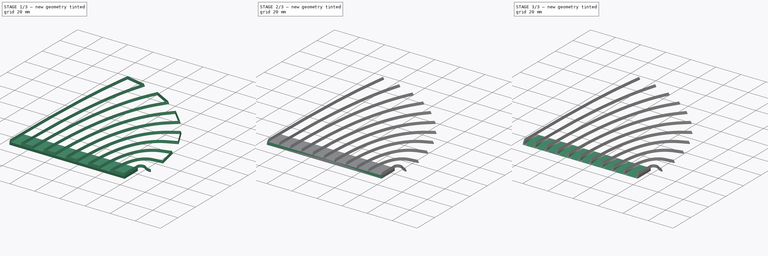
[diagram: build sequence overview — one tinted view per stage of 3, left to right]
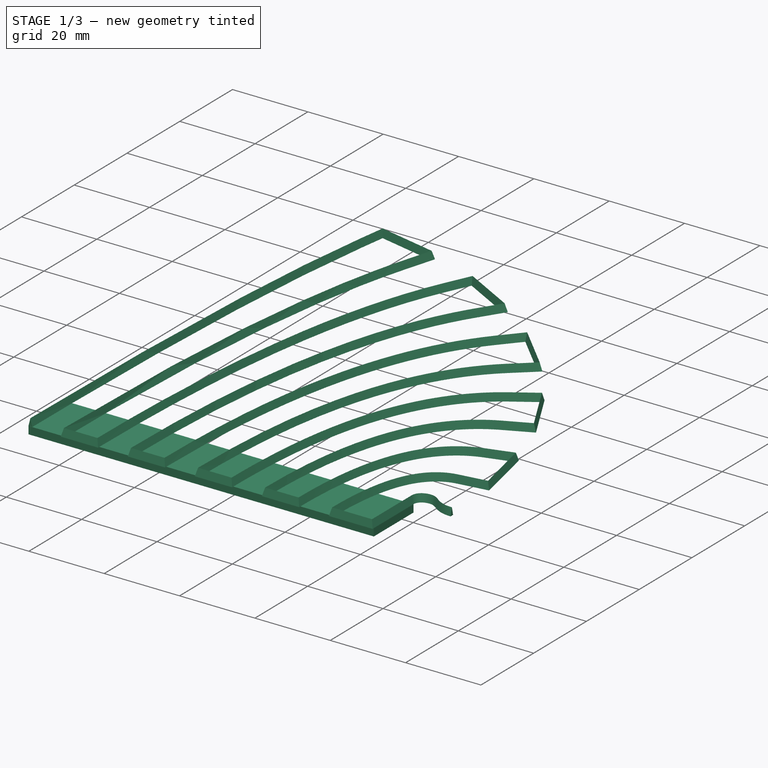
[diagram: stage 1 of 3 — iso view after this stage's code; geometry added in this stage tinted green]
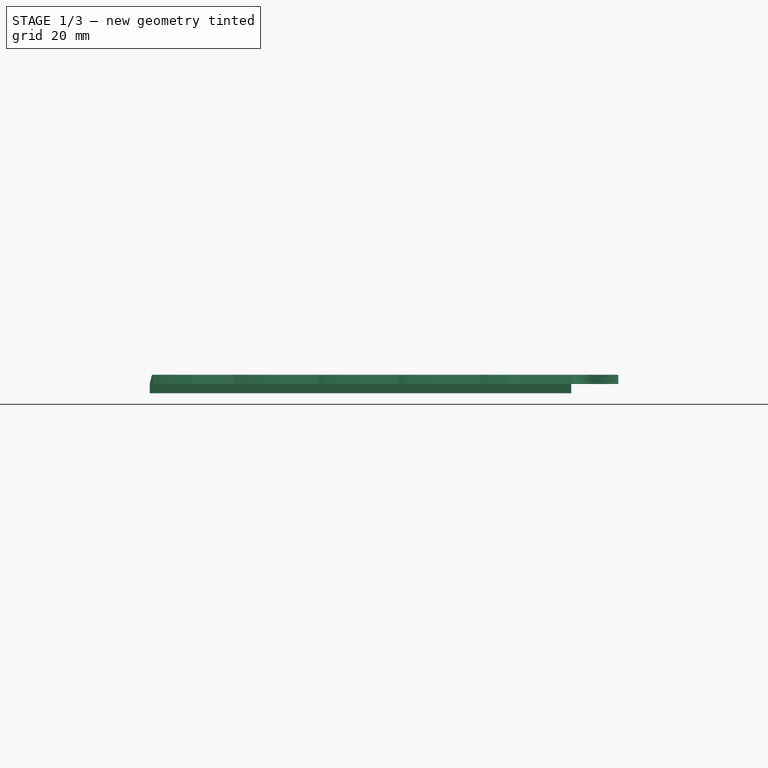
[diagram: stage 1 of 3 — front view after this stage's code; geometry added in this stage tinted green]
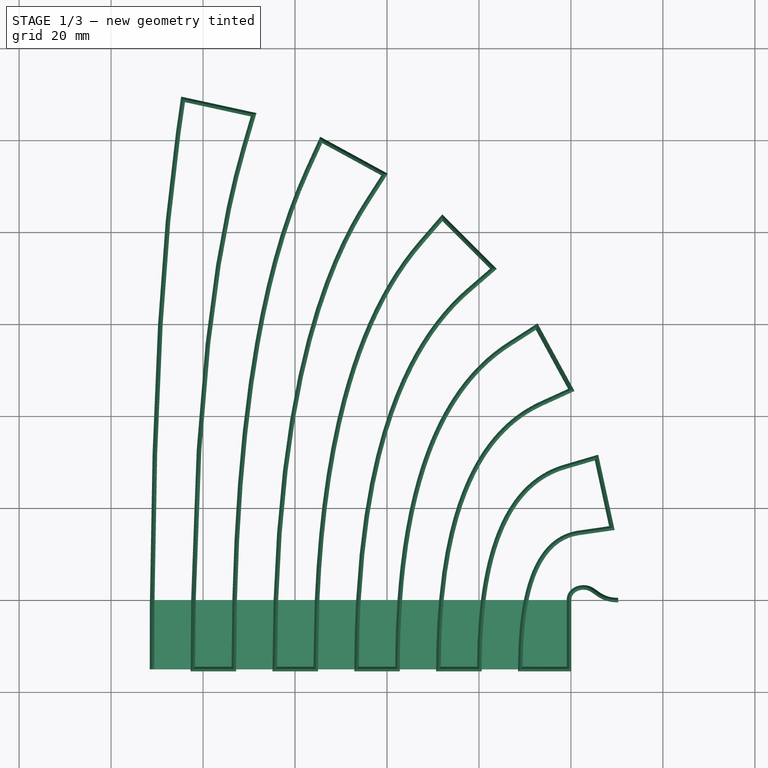
[diagram: stage 1 of 3 — top view after this stage's code; geometry added in this stage tinted green]
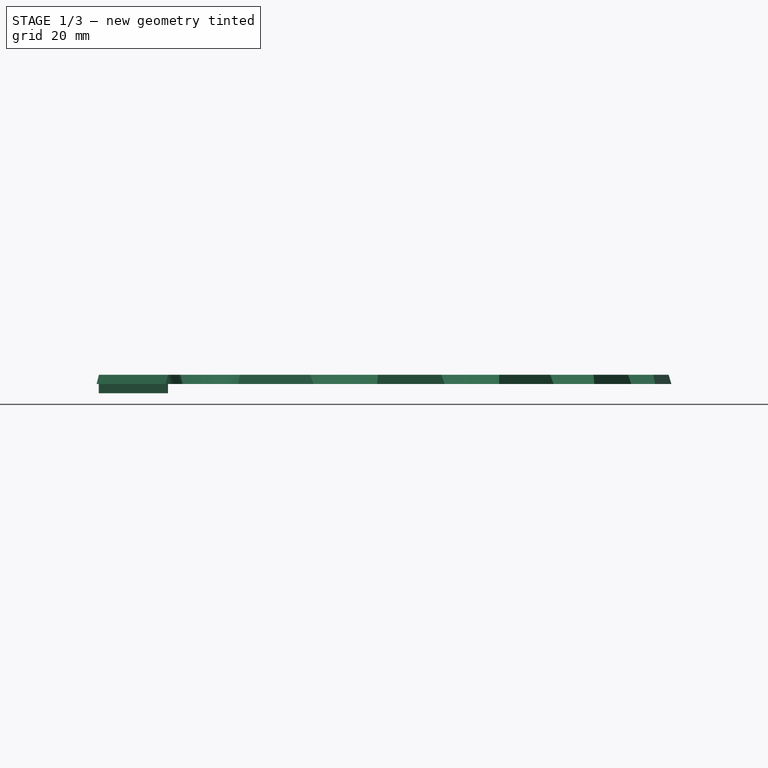
[diagram: stage 1 of 3 — right view after this stage's code; geometry added in this stage tinted green]
FCSTD DOCUMENT  (FreeCAD 0.20R29603 (Git))
Label: Heat Exchanger inlet dispersion grid rounded edges inject mold version
License: All rights reserved
LicenseURL: http://en.wikipedia.org/wiki/All_rights_reserved
objects: Sketcher::SketchObject×7, PartDesign::Pocket×2, PartDesign::AdditivePipe×1, PartDesign::Pad×1, PartDesign::SubtractivePipe×1, PartDesign::Body×1
note: 18 computed .brp shape members not serialized (recipe doc carries the construction recipe); baked Part::Feature solids carry a one-line shape summary decoded from their .brp

FEATURE [Sketcher::SketchObject] Sketch
  FullyConstrained = false
  MapMode = 5
  Support = -> [XY_Plane]
  sketch-geometry (132):
    g0: ArcOfCircle CenterX=-3.6e-15 CenterY=0 CenterZ=0 NormalX=0 NormalY=0 NormalZ=1 AngleXU=0 Radius=102.831 StartAngle=0 EndAngle=1.5708
    g1: LineSegment StartX=102.831 StartY=0 StartZ=0 EndX=102.831 EndY=-15 EndZ=0
    g2: LineSegment StartX=6.3e-15 StartY=102.831 StartZ=0 EndX=14.6343 EndY=101.784 EndZ=0
    g3: LineSegment StartX=14.6343 StartY=101.784 StartZ=0 EndX=28.9708 EndY=98.6653 EndZ=0
    g4: LineSegment StartX=28.9708 StartY=98.6653 StartZ=0 EndX=42.7174 EndY=93.5381 EndZ=0
    g5: LineSegment StartX=42.7174 StartY=93.5381 StartZ=0 EndX=55.5945 EndY=86.5067 EndZ=0
    g6: LineSegment StartX=55.5945 StartY=86.5067 StartZ=0 EndX=67.3398 EndY=77.7142 EndZ=0
    g7: LineSegment StartX=67.3398 StartY=77.7142 StartZ=0 EndX=77.7142 EndY=67.3398 EndZ=0
    g8: LineSegment StartX=77.7142 StartY=67.3398 StartZ=0 EndX=86.5067 EndY=55.5945 EndZ=0
    g9: LineSegment StartX=86.5067 StartY=55.5945 StartZ=0 EndX=93.5381 EndY=42.7174 EndZ=0
    g10: LineSegment StartX=93.5381 StartY=42.7174 StartZ=0 EndX=98.6653 EndY=28.9708 EndZ=0
    g11: LineSegment StartX=98.6653 StartY=28.9708 StartZ=0 EndX=101.784 EndY=14.6343 EndZ=0
    g12: LineSegment StartX=101.784 StartY=14.6343 StartZ=0 EndX=102.831 EndY=0 EndZ=0
    g13: LineSegment StartX=-3.6e-15 StartY=0 StartZ=0 EndX=14.6343 EndY=101.784 EndZ=0
    g14: LineSegment StartX=28.9708 StartY=98.6653 StartZ=0 EndX=-3.6e-15 EndY=0 EndZ=0
    g15: LineSegment StartX=42.7174 StartY=93.5381 StartZ=0 EndX=0 EndY=0 EndZ=0
    g16: LineSegment StartX=55.5945 StartY=86.5067 StartZ=0 EndX=0 EndY=0 EndZ=0
    g17: LineSegment StartX=67.3398 StartY=77.7142 StartZ=0 EndX=0 EndY=0 EndZ=0
    g18: LineSegment StartX=77.7142 StartY=67.3398 StartZ=0 EndX=0 EndY=0 EndZ=0
    g19: LineSegment StartX=86.5067 StartY=55.5945 StartZ=0 EndX=0 EndY=0 EndZ=0
    g20: LineSegment StartX=93.5381 StartY=42.7174 StartZ=0 EndX=0 EndY=0 EndZ=0
    g21: LineSegment StartX=98.6653 StartY=28.9708 StartZ=0 EndX=0 EndY=-3.6e-15 EndZ=0
    g22: LineSegment StartX=101.784 StartY=14.6343 StartZ=0 EndX=0 EndY=1.8e-15 EndZ=0
    g23: LineSegment StartX=8.89879 StartY=-15 StartZ=0 EndX=0 EndY=-15 EndZ=0
    g24: LineSegment StartX=17.7976 StartY=-15 StartZ=0 EndX=8.89879 EndY=-15 EndZ=0
    g25: LineSegment StartX=26.6964 StartY=-15 StartZ=0 EndX=17.7976 EndY=-15 EndZ=0
    g26: LineSegment StartX=35.5952 StartY=-15 StartZ=0 EndX=26.6964 EndY=-15 EndZ=0
    g27: LineSegment StartX=53.3927 StartY=-15 StartZ=0 EndX=44.4939 EndY=-15 EndZ=0
    g28: LineSegment StartX=44.4939 StartY=-15 StartZ=0 EndX=35.5952 EndY=-15 EndZ=0
    g29: LineSegment StartX=62.2915 StartY=-15 StartZ=0 EndX=53.3927 EndY=-15 EndZ=0
    g30: LineSegment StartX=71.1903 StartY=-15 StartZ=0 EndX=62.2915 EndY=-15 EndZ=0
    g31: LineSegment StartX=80.0891 StartY=-15 StartZ=0 EndX=71.1903 EndY=-15 EndZ=0
    g32: LineSegment StartX=88.9879 StartY=-15 StartZ=0 EndX=80.0891 EndY=-15 EndZ=0
    g33: Circle CenterX=8.89879 CenterY=-15 CenterZ=0 NormalX=0 NormalY=0 NormalZ=1 AngleXU=0 Radius=1
    g34: Circle CenterX=8.89879 CenterY=61.8924 CenterZ=0 NormalX=0 NormalY=0 NormalZ=1 AngleXU=0 Radius=1
    g35: Circle CenterX=14.6343 CenterY=101.784 CenterZ=0 NormalX=0 NormalY=0 NormalZ=1 AngleXU=0 Radius=1
    g36: BSplineCurve PolesCount=3 KnotsCount=2 Degree=2 IsPeriodic=0
    g37: GeomPoint X=8.89879 Y=-15 Z=0
    g38: GeomPoint X=14.6343 Y=101.784 Z=0
    g39: Circle CenterX=17.7976 CenterY=-15 CenterZ=0 NormalX=0 NormalY=0 NormalZ=1 AngleXU=0 Radius=1
    g40: Circle CenterX=17.7976 CenterY=60.613 CenterZ=0 NormalX=0 NormalY=0 NormalZ=1 AngleXU=0 Radius=1
    g41: Circle CenterX=28.9708 CenterY=98.6653 CenterZ=0 NormalX=0 NormalY=0 NormalZ=1 AngleXU=0 Radius=1
    g42: BSplineCurve PolesCount=3 KnotsCount=2 Degree=2 IsPeriodic=0
    g43: GeomPoint X=17.7976 Y=-15 Z=0
    g44: GeomPoint X=28.9708 Y=98.6653 Z=0
    g45: Circle CenterX=26.6964 CenterY=-15 CenterZ=0 NormalX=0 NormalY=0 NormalZ=1 AngleXU=0 Radius=1
    g46: Circle CenterX=26.6964 CenterY=58.4569 CenterZ=0 NormalX=0 NormalY=0 NormalZ=1 AngleXU=0 Radius=1
    g47: Circle CenterX=42.7174 CenterY=93.5381 CenterZ=0 NormalX=0 NormalY=0 NormalZ=1 AngleXU=0 Radius=1
    g48: BSplineCurve PolesCount=3 KnotsCount=2 Degree=2 IsPeriodic=0
    g49: GeomPoint X=26.6964 Y=-15 Z=0
    g50: GeomPoint X=42.7174 Y=93.5381 Z=0
    g51: Circle CenterX=35.5952 CenterY=-15 CenterZ=0 NormalX=0 NormalY=0 NormalZ=1 AngleXU=0 Radius=1
    g52: Circle CenterX=35.5952 CenterY=55.3871 CenterZ=0 NormalX=0 NormalY=0 NormalZ=1 AngleXU=0 Radius=1
    g53: Circle CenterX=55.5945 CenterY=86.5067 CenterZ=0 NormalX=0 NormalY=0 NormalZ=1 AngleXU=0 Radius=1
    g54: BSplineCurve PolesCount=3 KnotsCount=2 Degree=2 IsPeriodic=0
    g55: GeomPoint X=35.5952 Y=-15 Z=0
    g56: GeomPoint X=55.5945 Y=86.5067 Z=0
    g57: Circle CenterX=44.4939 CenterY=-15 CenterZ=0 NormalX=0 NormalY=0 NormalZ=1 AngleXU=0 Radius=1
    g58: Circle CenterX=44.4939 CenterY=51.3487 CenterZ=0 NormalX=0 NormalY=0 NormalZ=1 AngleXU=0 Radius=1
    g59: Circle CenterX=67.3398 CenterY=77.7142 CenterZ=0 NormalX=0 NormalY=0 NormalZ=1 AngleXU=0 Radius=1
    g60: BSplineCurve PolesCount=3 KnotsCount=2 Degree=2 IsPeriodic=0
    g61: GeomPoint X=44.4939 Y=-15 Z=0
    g62: GeomPoint X=67.3398 Y=77.7142 Z=0
    g63: Circle CenterX=53.3927 CenterY=-15 CenterZ=0 NormalX=0 NormalY=0 NormalZ=1 AngleXU=0 Radius=1
    g64: Circle CenterX=53.3927 CenterY=46.2651 CenterZ=0 NormalX=0 NormalY=0 NormalZ=1 AngleXU=0 Radius=1
    g65: Circle CenterX=77.7142 CenterY=67.3398 CenterZ=0 NormalX=0 NormalY=0 NormalZ=1 AngleXU=0 Radius=1
    g66: BSplineCurve PolesCount=3 KnotsCount=2 Degree=2 IsPeriodic=0
    g67: GeomPoint X=53.3927 Y=-15 Z=0
    g68: GeomPoint X=77.7142 Y=67.3398 Z=0
    g69: Circle CenterX=62.2915 CenterY=-15 CenterZ=0 NormalX=0 NormalY=0 NormalZ=1 AngleXU=0 Radius=1
    g70: Circle CenterX=62.2915 CenterY=40.0323 CenterZ=0 NormalX=0 NormalY=0 NormalZ=1 AngleXU=0 Radius=1
    g71: Circle CenterX=86.5067 CenterY=55.5945 CenterZ=0 NormalX=0 NormalY=0 NormalZ=1 AngleXU=0 Radius=1
    g72: BSplineCurve PolesCount=3 KnotsCount=2 Degree=2 IsPeriodic=0
    g73: GeomPoint X=62.2915 Y=-15 Z=0
    g74: GeomPoint X=86.5067 Y=55.5945 Z=0
    g75: Circle CenterX=71.1903 CenterY=-15 CenterZ=0 NormalX=0 NormalY=0 NormalZ=1 AngleXU=0 Radius=1
    g76: Circle CenterX=71.1903 CenterY=32.5115 CenterZ=0 NormalX=0 NormalY=0 NormalZ=1 AngleXU=0 Radius=1
    g77: Circle CenterX=93.5381 CenterY=42.7174 CenterZ=0 NormalX=0 NormalY=0 NormalZ=1 AngleXU=0 Radius=1
    g78: BSplineCurve PolesCount=3 KnotsCount=2 Degree=2 IsPeriodic=0
    g79: GeomPoint X=71.1903 Y=-15 Z=0
    g80: GeomPoint X=93.5381 Y=42.7174 Z=0
    g81: Circle CenterX=80.0891 CenterY=-15 CenterZ=0 NormalX=0 NormalY=0 NormalZ=1 AngleXU=0 Radius=1
    g82: Circle CenterX=80.0891 CenterY=23.5163 CenterZ=0 NormalX=0 NormalY=0 NormalZ=1 AngleXU=0 Radius=1
    g83: Circle CenterX=98.6653 CenterY=28.9708 CenterZ=0 NormalX=0 NormalY=0 NormalZ=1 AngleXU=0 Radius=1
    g84: BSplineCurve PolesCount=3 KnotsCount=2 Degree=2 IsPeriodic=0
    g85: GeomPoint X=80.0891 Y=-15 Z=0
    g86: GeomPoint X=98.6653 Y=28.9708 Z=0
    g87: Circle CenterX=88.9879 CenterY=-15 CenterZ=0 NormalX=0 NormalY=0 NormalZ=1 AngleXU=0 Radius=1
    g88: Circle CenterX=88.9879 CenterY=12.7945 CenterZ=0 NormalX=0 NormalY=0 NormalZ=1 AngleXU=0 Radius=1
    g89: Circle CenterX=101.784 CenterY=14.6343 CenterZ=0 NormalX=0 NormalY=0 NormalZ=1 AngleXU=0 Radius=1
    g90: BSplineCurve PolesCount=3 KnotsCount=2 Degree=2 IsPeriodic=0
    g91: GeomPoint X=88.9879 Y=-15 Z=0
    g92: GeomPoint X=101.784 Y=14.6343 Z=0
    g93: LineSegment StartX=8.89879 StartY=61.8924 StartZ=0 EndX=8.89879 EndY=-15 EndZ=0
    g94: LineSegment StartX=17.7976 StartY=60.613 StartZ=0 EndX=17.7976 EndY=-15 EndZ=0
    g95: LineSegment StartX=26.6964 StartY=58.4569 StartZ=0 EndX=26.6964 EndY=-15 EndZ=0
    g96: LineSegment StartX=35.5952 StartY=55.3871 StartZ=0 EndX=35.5952 EndY=-15 EndZ=0
    g97: LineSegment StartX=44.4939 StartY=51.3487 StartZ=0 EndX=44.4939 EndY=-15 EndZ=0
    g98: LineSegment StartX=53.3927 StartY=46.2651 StartZ=0 EndX=53.3927 EndY=-15 EndZ=0
    g99: LineSegment StartX=62.2915 StartY=40.0323 StartZ=0 EndX=62.2915 EndY=-15 EndZ=0
    g100: LineSegment StartX=71.1903 StartY=32.5115 StartZ=0 EndX=71.1903 EndY=-15 EndZ=0
    g101: LineSegment StartX=80.0891 StartY=23.5163 StartZ=0 EndX=80.0891 EndY=-15 EndZ=0
    g102: LineSegment StartX=88.9879 StartY=12.7945 StartZ=0 EndX=88.9879 EndY=-15 EndZ=0
    g103: LineSegment StartX=14.6343 StartY=101.784 StartZ=0 EndX=15.6573 EndY=108.899 EndZ=0
    g104: LineSegment StartX=28.9708 StartY=98.6653 StartZ=0 EndX=30.9958 EndY=105.562 EndZ=0
    g105: LineSegment StartX=42.7174 StartY=93.5381 StartZ=0 EndX=45.7034 EndY=100.076 EndZ=0
    g106: LineSegment StartX=55.5945 StartY=86.5067 StartZ=0 EndX=59.4806 EndY=92.5536 EndZ=0
    g107: LineSegment StartX=67.3398 StartY=77.7142 StartZ=0 EndX=72.0469 EndY=83.1465 EndZ=0
    g108: LineSegment StartX=77.7142 StartY=67.3398 StartZ=0 EndX=83.1465 EndY=72.0469 EndZ=0
    g109: LineSegment StartX=86.5067 StartY=55.5945 StartZ=0 EndX=92.5536 EndY=59.4806 EndZ=0
    g110: LineSegment StartX=93.5381 StartY=42.7174 StartZ=0 EndX=100.076 EndY=45.7034 EndZ=0
    g111: LineSegment StartX=98.6653 StartY=28.9708 StartZ=0 EndX=105.562 EndY=30.9958 EndZ=0
    g112: LineSegment StartX=101.784 StartY=14.6343 StartZ=0 EndX=108.899 EndY=15.6573 EndZ=0
    g113: LineSegment StartX=102.831 StartY=-15 StartZ=0 EndX=99.5821 EndY=-15 EndZ=0
    g114: LineSegment StartX=99.5821 StartY=-15 StartZ=0 EndX=88.9879 EndY=-15 EndZ=0
    g115: LineSegment StartX=99.5821 StartY=-15 StartZ=0 EndX=99.5821 EndY=0 EndZ=0
    g116: LineSegment StartX=108.899 StartY=15.6573 StartZ=0 EndX=110.277 EndY=0 EndZ=0
    g117-g121: Circle x5 (B-spline internal-alignment scaffolding for g122; pole/knot coordinates omitted)
    g122: BSplineCurve PolesCount=5 KnotsCount=3 Degree=3 IsPeriodic=0
    g123: GeomPoint X=99.5821 Y=0 Z=0
    g124: GeomPoint X=103.822 Y=2.58541 Z=0
    g125: GeomPoint X=110.277 Y=0 Z=0
    g126: LineSegment StartX=99.5821 StartY=0 StartZ=0 EndX=90.6833 EndY=0 EndZ=0
    g127: LineSegment StartX=15.6573 StartY=108.899 StartZ=0 EndX=30.9958 EndY=105.562 EndZ=0
    g128: LineSegment StartX=45.7034 StartY=100.076 StartZ=0 EndX=59.4806 EndY=92.5536 EndZ=0
    g129: LineSegment StartX=72.0469 StartY=83.1465 StartZ=0 EndX=83.1465 EndY=72.0469 EndZ=0
    g130: LineSegment StartX=92.5536 StartY=59.4806 StartZ=0 EndX=100.076 EndY=45.7034 EndZ=0
    g131: LineSegment StartX=105.562 StartY=30.9958 StartZ=0 EndX=108.899 EndY=15.6573 EndZ=0
  constraints (293):
    c: Coincident(g0,g-1)
    c: PointOnObject(g0,g-1)
    c: PointOnObject(g0,g-2)
    c: Coincident(g1,g0)
    c: Vertical(g1)
    c: PointOnObject(g23,g-2)
    c: Coincident(g0,g2)
    c: Coincident(g2,g3)
    c: PointOnObject(g3,g0)
    c: Coincident(g3,g4)
    c: PointOnObject(g4,g0)
    c: Coincident(g4,g5)
    c: PointOnObject(g5,g0)
    c: Coincident(g5,g6)
    c: PointOnObject(g6,g0)
    c: Coincident(g6,g7)
    c: PointOnObject(g7,g0)
    c: Coincident(g7,g8)
    c: PointOnObject(g8,g0)
    c: Coincident(g8,g9)
    c: PointOnObject(g9,g0)
    c: Coincident(g9,g10)
    c: PointOnObject(g10,g0)
    c: Coincident(g10,g11)
    c: PointOnObject(g11,g0)
    c: Coincident(g11,g12)
    c: Coincident(g12,g0)
    c: PointOnObject(g2,g0)
    c: Equal(g2,g3)
    c: Equal(g3,g4)
    c: Equal(g4,g5)
    c: Equal(g5,g6)
    c: Equal(g6,g7)
    c: Equal(g7,g9)
    c: Equal(g7,g8)
    c: Equal(g9,g10)
    c: Equal(g10,g12)
    c: Equal(g12,g11)
    c: Coincident(g13,g0)
    c: Coincident(g13,g2)
    c: Coincident(g14,g3)
    c: Coincident(g14,g0)
    c: Coincident(g15,g4)
    c: Coincident(g15,g0)
    c: Coincident(g16,g5)
    c: Coincident(g16,g0)
    c: Coincident(g17,g6)
    c: Coincident(g18,g7)
    c: Coincident(g18,g0)
    c: Coincident(g19,g8)
    c: Coincident(g19,g0)
    c: Coincident(g20,g9)
    c: Coincident(g20,g0)
    c: Coincident(g21,g10)
    c: Coincident(g21,g0)
    c: Coincident(g22,g11)
    c: Coincident(g22,g0)
    c: Coincident(g0,g17)
    c: Coincident(g24,g23)
    c: Horizontal(g23)
    c: Coincident(g29,g27)
    c: Coincident(g25,g24)
    c: Horizontal(g24)
    c: Coincident(g26,g25)
    c: Horizontal(g25)
    c: Coincident(g28,g26)
    c: Horizontal(g26)
    c: Coincident(g27,g28)
    c: Horizontal(g27)
    c: Horizontal(g28)
    c: Coincident(g30,g29)
    c: Horizontal(g29)
    c: Coincident(g31,g30)
    c: Horizontal(g30)
    c: Coincident(g32,g31)
    c: Horizontal(g31)
    c: Coincident(g114,g32)
    c: Horizontal(g32)
    c: Equal(g23,g24)
    c: Equal(g24,g25)
    c: Equal(g25,g26)
    c: Equal(g26,g28)
    c: Equal(g28,g27)
    c: Equal(g27,g29)
    c: Equal(g29,g30)
    c: Equal(g30,g31)
    c: Equal(g31,g32)
    c: Weight(g33) = 1
    c: Coincident(g36,g23)
    c: Equal(g33,g34)
    c: PointOnObject(g34,g13)
    c: Equal(g33,g35)
    c: Coincident(g36,g2)
    c: InternalAlignment(g33,g36)
    c: InternalAlignment(g34,g36)
    c: InternalAlignment(g35,g36)
    c: InternalAlignment(g37,g36)
    c: InternalAlignment(g38,g36)
    c: Weight(g39) = 1
    c: Coincident(g42,g24)
    c: Equal(g39,g40)
    c: PointOnObject(g40,g14)
    c: Equal(g39,g41)
    c: Coincident(g42,g3)
    c: InternalAlignment(g39,g42)
    c: InternalAlignment(g40,g42)
    c: InternalAlignment(g41,g42)
    c: InternalAlignment(g43,g42)
    c: InternalAlignment(g44,g42)
    c: Weight(g45) = 1
    c: Coincident(g48,g25)
    c: Equal(g45,g46)
    c: PointOnObject(g46,g15)
    c: Equal(g45,g47)
    c: Coincident(g48,g4)
    c: InternalAlignment(g45,g48)
    c: InternalAlignment(g46,g48)
    c: InternalAlignment(g47,g48)
    c: InternalAlignment(g49,g48)
    c: InternalAlignment(g50,g48)
    c: Weight(g51) = 1
    c: Coincident(g54,g26)
    c: Equal(g51,g52)
    c: PointOnObject(g52,g16)
    c: Equal(g51,g53)
    c: Coincident(g54,g5)
    c: InternalAlignment(g51,g54)
    c: InternalAlignment(g52,g54)
    c: InternalAlignment(g53,g54)
    c: InternalAlignment(g55,g54)
    c: InternalAlignment(g56,g54)
    c: Weight(g57) = 1
    c: Coincident(g60,g27)
    c: Equal(g57,g58)
    c: PointOnObject(g58,g17)
    c: Equal(g57,g59)
    c: Coincident(g60,g6)
    c: InternalAlignment(g57,g60)
    c: InternalAlignment(g58,g60)
    c: InternalAlignment(g59,g60)
    c: InternalAlignment(g61,g60)
    c: InternalAlignment(g62,g60)
    c: Weight(g63) = 1
    c: Coincident(g66,g27)
    c: Equal(g63,g64)
    c: PointOnObject(g64,g18)
    c: Equal(g63,g65)
    c: Coincident(g66,g7)
    c: InternalAlignment(g63,g66)
    c: InternalAlignment(g64,g66)
    c: InternalAlignment(g65,g66)
    c: InternalAlignment(g67,g66)
    c: InternalAlignment(g68,g66)
    c: Weight(g69) = 1
    c: Coincident(g72,g29)
    c: Equal(g69,g70)
    c: PointOnObject(g70,g19)
    c: Equal(g69,g71)
    c: Coincident(g72,g8)
    c: InternalAlignment(g69,g72)
    c: InternalAlignment(g70,g72)
    c: InternalAlignment(g71,g72)
    c: InternalAlignment(g73,g72)
    c: InternalAlignment(g74,g72)
    c: Weight(g75) = 1
    c: Coincident(g78,g30)
    c: Equal(g75,g76)
    c: PointOnObject(g76,g20)
    c: Equal(g75,g77)
    c: Coincident(g78,g9)
    c: InternalAlignment(g75,g78)
    c: InternalAlignment(g76,g78)
    c: InternalAlignment(g77,g78)
    c: InternalAlignment(g79,g78)
    c: InternalAlignment(g80,g78)
    c: Weight(g81) = 1
    c: Coincident(g84,g31)
    c: Equal(g81,g82)
    c: PointOnObject(g82,g21)
    c: Equal(g81,g83)
    c: Coincident(g84,g10)
    c: InternalAlignment(g81,g84)
    c: InternalAlignment(g82,g84)
    c: InternalAlignment(g83,g84)
    c: InternalAlignment(g85,g84)
    c: InternalAlignment(g86,g84)
    c: Weight(g87) = 1
    c: Coincident(g90,g114)
    c: Equal(g87,g88)
    c: PointOnObject(g88,g22)
    c: Equal(g87,g89)
    c: Coincident(g90,g11)
    c: InternalAlignment(g87,g90)
    c: InternalAlignment(g88,g90)
    c: InternalAlignment(g89,g90)
    c: InternalAlignment(g91,g90)
    c: InternalAlignment(g92,g90)
    c: Coincident(g93,g34)
    c: Coincident(g93,g36)
    c: Vertical(g93)
    c: Coincident(g94,g40)
    c: Coincident(g94,g42)
    c: Vertical(g94)
    c: Coincident(g95,g46)
    c: Coincident(g95,g48)
    c: Coincident(g96,g52)
    c: Coincident(g96,g54)
    c: Coincident(g97,g58)
    c: Coincident(g97,g60)
    c: Coincident(g98,g64)
    c: Coincident(g98,g66)
    c: Coincident(g99,g70)
    c: Coincident(g99,g72)
    c: Coincident(g100,g76)
    c: Coincident(g100,g78)
    c: Coincident(g101,g84)
    c: Coincident(g102,g88)
    c: Coincident(g102,g90)
    c: Vertical(g102)
    c: Coincident(g101,g82)
    c: Vertical(g95)
    c: Vertical(g96)
    c: Vertical(g97)
    c: Vertical(g98)
    c: Vertical(g99)
    c: Vertical(g100)
    c: Vertical(g101)
    c: Coincident(g103,g36)
    c: Coincident(g104,g42)
    c: Coincident(g105,g48)
    c: Coincident(g106,g54)
    c: Coincident(g107,g60)
    c: Coincident(g108,g66)
    c: Coincident(g109,g72)
    c: Coincident(g110,g78)
    c: Coincident(g111,g84)
    c: Coincident(g112,g90)
    c: Perpendicular(g0,g112)
    c: Perpendicular(g0,g111)
    c: Perpendicular(g0,g110)
    c: Perpendicular(g0,g109)
    c: Perpendicular(g0,g108)
    c: Perpendicular(g0,g107)
    c: Perpendicular(g0,g106)
    c: Perpendicular(g0,g105)
    c: Perpendicular(g0,g104)
    c: Perpendicular(g0,g103)
    c: Equal(g107,g106)
    c: Equal(g106,g105)
    c: Equal(g105,g104)
    c: Equal(g104,g103)
    c: Equal(g107,g108)
    c: Equal(g108,g109)
    c: Equal(g109,g110)
    c: Equal(g110,g111)
    c: Equal(g111,g112)
    c: DistanceX(g36,g112) = 100
    c: Coincident(g113,g1)
    c: Coincident(g113,g114)
    c: Horizontal(g113)
    c: Horizontal(g114)
    c: DistanceY(g23,g0) = 15
    c: Coincident(g115,g113)
    c: PointOnObject(g115,g-1)
    c: Vertical(g115)
    c: Coincident(g116,g112)
    c: PointOnObject(g116,g-1)
    c: Weight(g117) = 1
    c: Coincident(g122,g115)
    c: Equal(g117,g118)
    c: Equal(g117,g119)
    c: Equal(g117,g120)
    c: PointOnObject(g120,g-1)
    c: Equal(g117,g121)
    c: Coincident(g122,g116)
    c: InternalAlignment(g117-g121 -> g122) x5
    c: InternalAlignment(g123,g122)
    c: InternalAlignment(g124,g122)
    c: InternalAlignment(g125,g122)
    c: PointOnObject(g118,g115)
    c: Coincident(g126,g115)
    c: PointOnObject(g126,g-1)
    c: Equal(g126,g32)
    c: Coincident(g127,g103)
    c: Coincident(g127,g104)
    c: Coincident(g128,g105)
    c: Coincident(g128,g106)
    c: Coincident(g129,g107)
    c: Coincident(g129,g108)
    c: Coincident(g130,g109)
    c: Coincident(g130,g110)
    c: Coincident(g131,g111)
    c: Coincident(g131,g112)
FEATURE [Sketcher::SketchObject] Sketch001
  ExternalGeometry = -> [Sketch]
  FullyConstrained = false
  MapMode = 5
  Placement = pos=(0,0,0) rot=(1,0,0;1.5708rad)
  Support = -> [XZ_Plane]
  sketch-geometry (3):
    g0: LineSegment StartX=53.2924 StartY=0 StartZ=0 EndX=53.7924 EndY=2 EndZ=0
    g1: LineSegment StartX=53.7924 StartY=2 StartZ=0 EndX=54.2924 EndY=0 EndZ=0
    g2: LineSegment StartX=54.2924 StartY=0 StartZ=0 EndX=53.2924 EndY=0 EndZ=0
  constraints (8):
    c: Coincident(g0,g1)
    c: Coincident(g1,g2)
    c: Coincident(g2,g0)
    c: Parallel(g-1,g2)
    c: DistanceX(g2,g2) = 1
    c: Equal(g1,g0)
    c: DistanceY(g1,g0) = 2
    c: PointOnObject(g1,g-1)
FEATURE [PartDesign::AdditivePipe] AdditivePipe
  AuxilleryCurvelinear = true
  AuxillerySpineTangent = false
  Binormal = (0,0,0)
  Mode = 0
  Placement = pos=(0,0,0) rot=(1,0,0;1.5708rad)
  Profile = -> Sketch001
  Spine = -> Sketch [Edge16,Edge15,Edge14,Edge13,Edge17,Edge12,Edge11,Edge10,Edge9,Edge8,Edge7,Edge6,Edge5,Edge4,Edge3,Edge2,Edge1,Edge18,Edge19,Edge20,Edge21,Edge22,Edge23,Edge24,Edge25,Edge26,Edge27,Edge28,Edge29,Edge30,Edge31,Edge32]
  SpineTangent = false
  Transformation = 0
  Transition = 1
FEATURE [Sketcher::SketchObject] Sketch002
  ExternalGeometry = -> [Sketch]
  FullyConstrained = true
  MapMode = 5
  Support = -> [XY_Plane]
  sketch-geometry (3):
    g0: ArcOfCircle CenterX=0 CenterY=0 CenterZ=0 NormalX=0 NormalY=0 NormalZ=1 AngleXU=0 Radius=110.019 StartAngle=0 EndAngle=1.5708
    g1: LineSegment StartX=110.019 StartY=0 StartZ=0 EndX=110.019 EndY=-15 EndZ=0
    g2: LineSegment StartX=110.019 StartY=-15 StartZ=0 EndX=0 EndY=-15 EndZ=0
  constraints (9):
    c: Coincident(g0,g-1)
    c: PointOnObject(g0,g-2)
    c: PointOnObject(g0,g-1)
    c: PointOnObject(g-3,g0)
    c: Tangent(g0,g1) = 1.5708
    c: PointOnObject(g2,g-2)
    c: Horizontal(g2)
    c: PointOnObject(g-4,g2)
    c: Coincident(g2,g1)
FEATURE [Sketcher::SketchObject] Sketch003
  ExternalGeometry = -> [Sketch002]
  FullyConstrained = false
  MapMode = 5
  Placement = pos=(0,0,0) rot=(1,0,0;1.5708rad)
  Support = -> [XZ_Plane]
  sketch-geometry (4):
    g0: LineSegment StartX=111.266 StartY=-5.84188 StartZ=0 EndX=108.319 EndY=3 EndZ=0
    g1: LineSegment StartX=108.319 StartY=3 StartZ=0 EndX=114.213 EndY=3 EndZ=0
    g2: LineSegment StartX=114.213 StartY=3 StartZ=0 EndX=111.266 EndY=-5.84188 EndZ=0
    g3: LineSegment StartX=109.319 StartY=1.7e-15 StartZ=0 EndX=110.019 EndY=1.7e-15 EndZ=0
  constraints (11):
    c: Coincident(g0,g1)
    c: Horizontal(g1)
    c: Coincident(g1,g2)
    c: Coincident(g2,g0)
    c: Equal(g0,g2)
    c: PointOnObject(g3,g0)
    c: Coincident(g3,g-5)
    c: Horizontal(g3)
    c: DistanceX(g3,g3) = 0.7
    c: DistanceY(g3,g0) = 3
    c: DistanceX(g0,g3) = 1
FEATURE [Sketcher::SketchObject] Sketch004
  ExternalGeometry = -> [AdditivePipe]
  FullyConstrained = true
  MapMode = 5
  Placement = pos=(0,0,3.3e-15) rot=(1,0,0;3.14159rad)
  Support = -> [AdditivePipe]
  sketch-geometry (4):
    g0: LineSegment StartX=100.079 StartY=-0.0274965 StartZ=0 EndX=8.39695 EndY=-0.0274965 EndZ=0
    g1: LineSegment StartX=8.39695 StartY=-0.0274965 StartZ=0 EndX=8.39695 EndY=15.0278 EndZ=0
    g2: LineSegment StartX=8.39695 StartY=15.0278 StartZ=0 EndX=100.079 EndY=15.0278 EndZ=0
    g3: LineSegment StartX=100.079 StartY=15.0278 StartZ=0 EndX=100.079 EndY=-0.0274965 EndZ=0
  constraints (10):
    c: Coincident(g0,g1)
    c: Coincident(g1,g2)
    c: Coincident(g2,g3)
    c: Coincident(g3,g0)
    c: Horizontal(g0)
    c: Horizontal(g2)
    c: Vertical(g1)
    c: Vertical(g3)
    c: Coincident(g0,g-4)
    c: Coincident(g1,g-3)
FEATURE [PartDesign::Pad] Pad
  BaseFeature = -> AdditivePipe
  Direction = (0,2e-16,-1)
  Length = 2
  Length2 = 10
  Placement = pos=(0,0,0) rot=(1,0,0;1.5708rad)
  Profile = -> Sketch004
  ReferenceAxis = -> Sketch004 [N_Axis]
  Type = 0
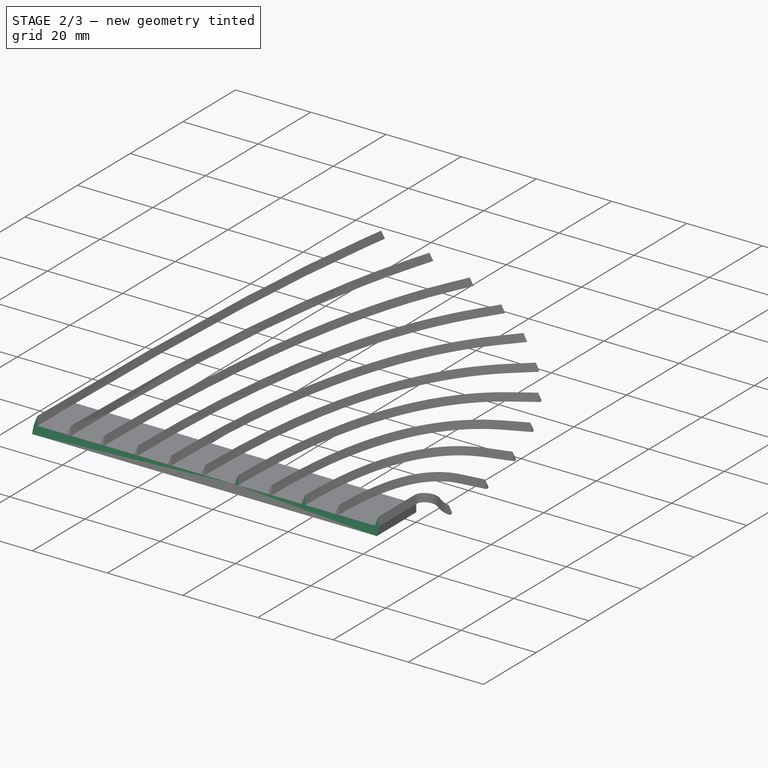
[diagram: stage 2 of 3 — iso view after this stage's code; geometry added in this stage tinted green]
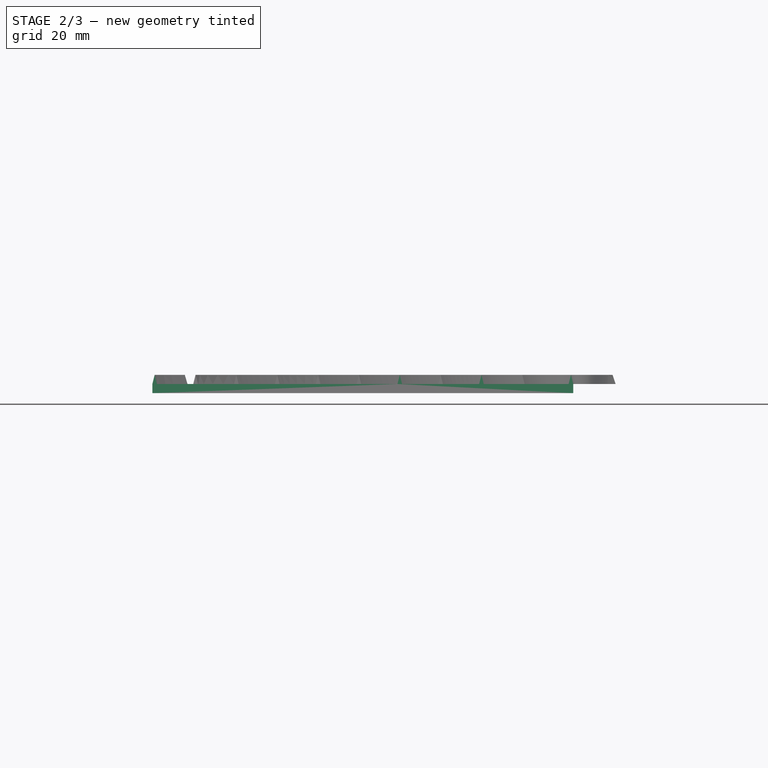
[diagram: stage 2 of 3 — front view after this stage's code; geometry added in this stage tinted green]
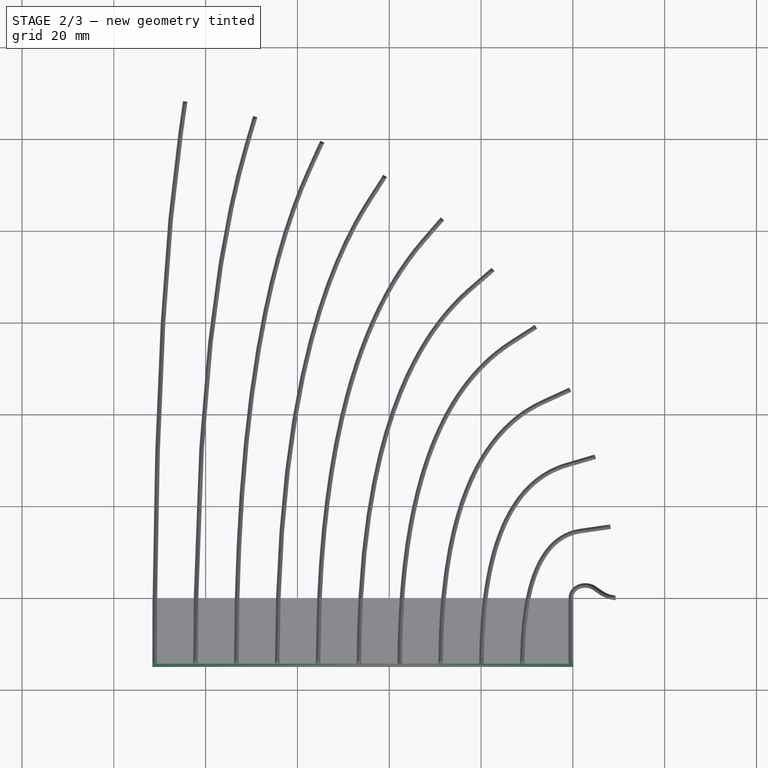
[diagram: stage 2 of 3 — top view after this stage's code; geometry added in this stage tinted green]
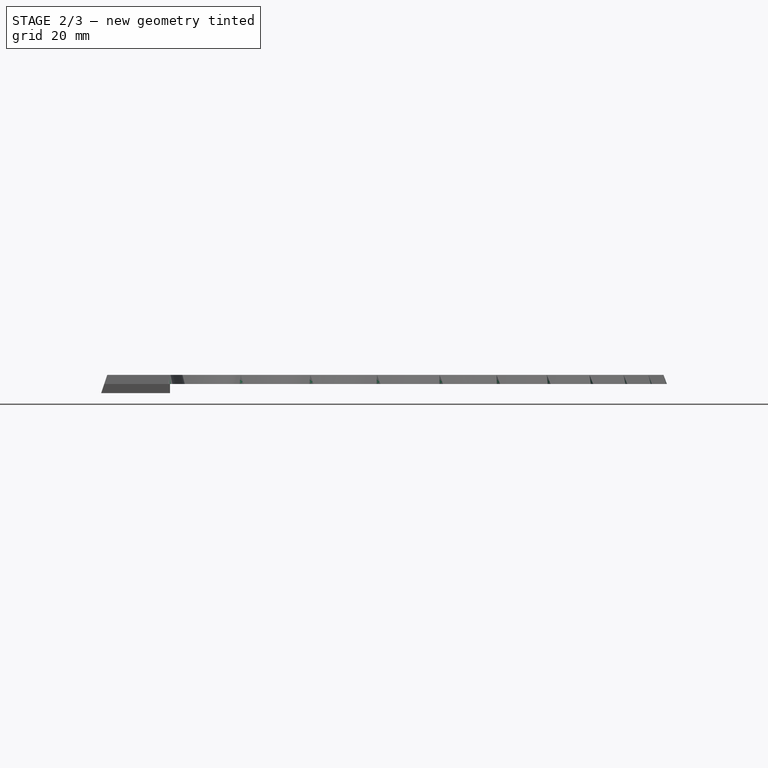
[diagram: stage 2 of 3 — right view after this stage's code; geometry added in this stage tinted green]
FEATURE [PartDesign::SubtractivePipe] SubtractivePipe
  AuxilleryCurvelinear = true
  AuxillerySpineTangent = false
  BaseFeature = -> Pad
  Binormal = (0,0,0)
  Mode = 0
  Placement = pos=(0,0,0) rot=(1,0,0;1.5708rad)
  Profile = -> Sketch003
  Spine = -> Sketch002 [Edge3,Edge2,Edge1]
  SpineTangent = false
  Transformation = 0
  Transition = 1
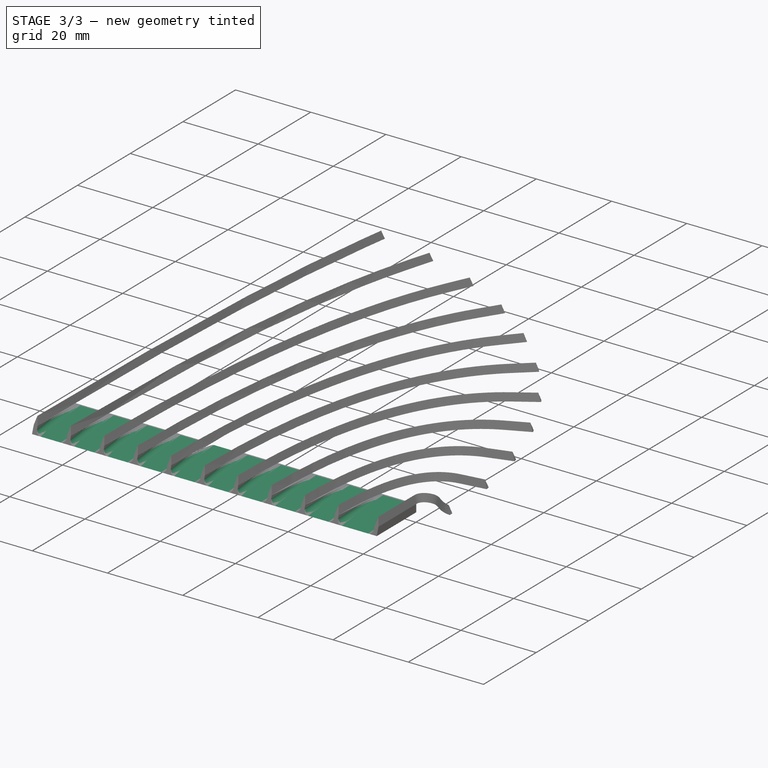
[diagram: stage 3 of 3 — iso view after this stage's code; geometry added in this stage tinted green]
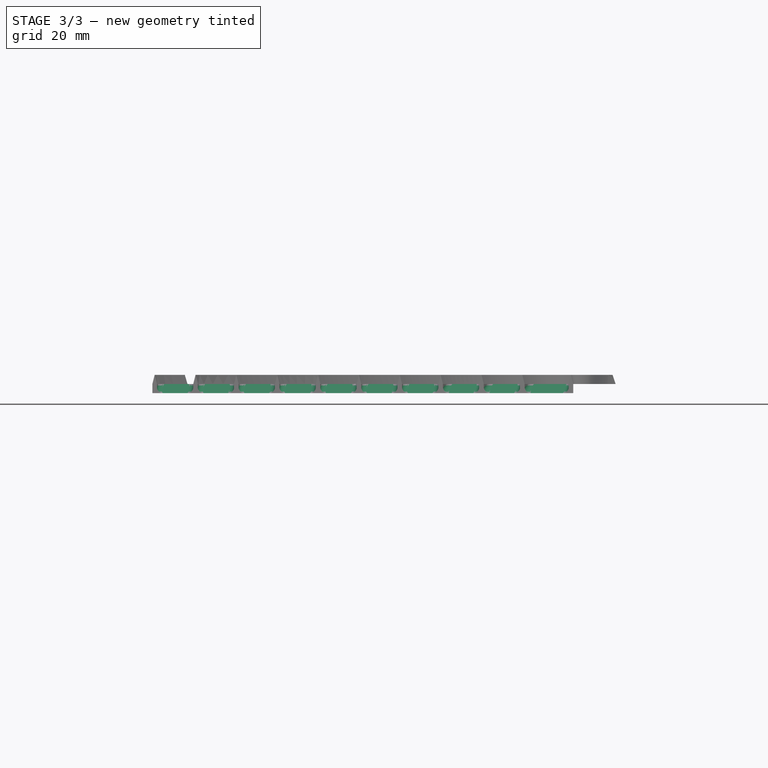
[diagram: stage 3 of 3 — front view after this stage's code; geometry added in this stage tinted green]
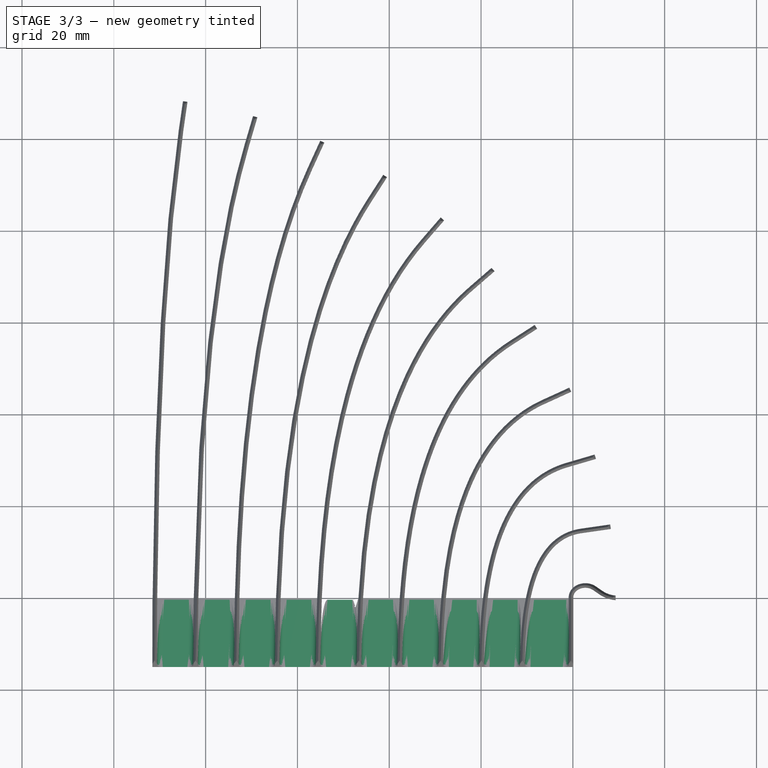
[diagram: stage 3 of 3 — top view after this stage's code; geometry added in this stage tinted green]
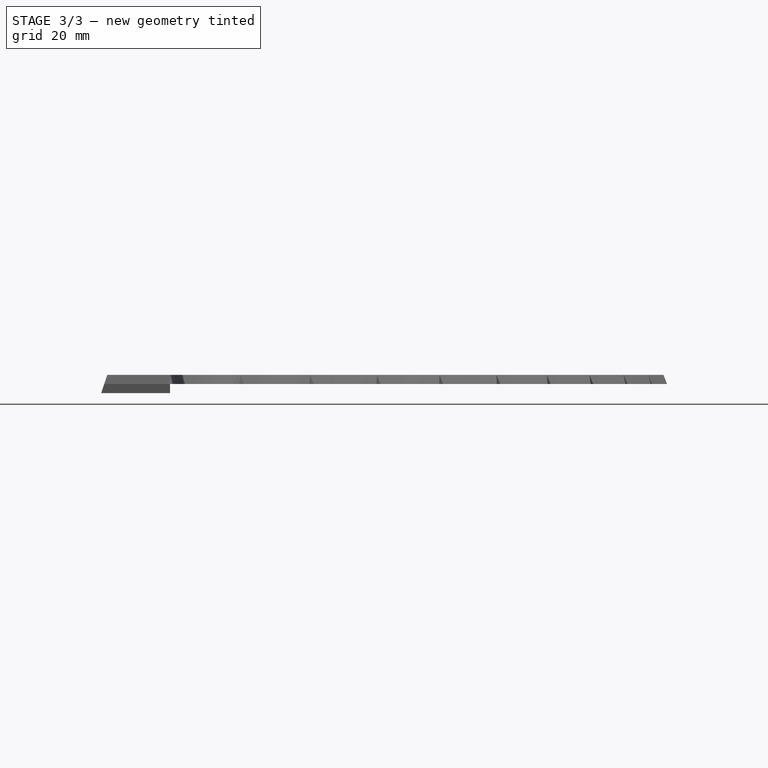
[diagram: stage 3 of 3 — right view after this stage's code; geometry added in this stage tinted green]
FEATURE [Sketcher::SketchObject] Sketch005
  ExternalGeometry = -> [SubtractivePipe]
  FullyConstrained = false
  MapMode = 5
  Placement = pos=(0,-12.87,4.29) rot=(1,0,0;1.24905rad)
  Support = -> [SubtractivePipe]
  sketch-geometry (44):
    g0: LineSegment StartX=9.39554 StartY=-2.73505 StartZ=0 EndX=17.3012 EndY=-2.73505 EndZ=0
    g1: LineSegment StartX=17.3012 StartY=-2.73505 StartZ=0 EndX=17.3012 EndY=-5.35803 EndZ=0
    g2: LineSegment StartX=16.029 StartY=-6.63024 StartZ=0 EndX=10.6678 EndY=-6.63024 EndZ=0
    g3: LineSegment StartX=9.39554 StartY=-5.35803 StartZ=0 EndX=9.39554 EndY=-2.73505 EndZ=0
    g4: ArcOfCircle CenterX=10.6678 CenterY=-5.35803 CenterZ=0 NormalX=0 NormalY=0 NormalZ=1 AngleXU=0 Radius=1.27221 StartAngle=3.14159 EndAngle=4.71239
    g5: ArcOfCircle CenterX=16.029 CenterY=-5.35803 CenterZ=0 NormalX=0 NormalY=0 NormalZ=1 AngleXU=0 Radius=1.27221 StartAngle=4.71239 EndAngle=6.28319
    g6: LineSegment StartX=18.2893 StartY=-2.73505 StartZ=0 EndX=26.1904 EndY=-2.73505 EndZ=0
    g7: LineSegment StartX=26.1904 StartY=-2.73505 StartZ=0 EndX=26.1904 EndY=-5.35803 EndZ=0
    g8: LineSegment StartX=24.9182 StartY=-6.63024 StartZ=0 EndX=19.5615 EndY=-6.63024 EndZ=0
    g9: LineSegment StartX=18.2893 StartY=-5.35803 StartZ=0 EndX=18.2893 EndY=-2.73505 EndZ=0
    g10: ArcOfCircle CenterX=19.5615 CenterY=-5.35803 CenterZ=0 NormalX=0 NormalY=0 NormalZ=1 AngleXU=0 Radius=1.27221 StartAngle=3.14159 EndAngle=4.71239
    g11: ArcOfCircle CenterX=24.9182 CenterY=-5.35803 CenterZ=0 NormalX=0 NormalY=0 NormalZ=1 AngleXU=0 Radius=1.27221 StartAngle=4.71239 EndAngle=6.28319
    g12: LineSegment StartX=9.39554 StartY=-2.73505 StartZ=0 EndX=18.2893 EndY=-2.73505 EndZ=0
    g13: LineSegment StartX=27.183 StartY=-2.73505 StartZ=0 EndX=35.0887 EndY=-2.73505 EndZ=0
    g14: LineSegment StartX=35.0887 StartY=-2.73505 StartZ=0 EndX=35.0887 EndY=-5.35803 EndZ=0
    g15: LineSegment StartX=33.8164 StartY=-6.63024 StartZ=0 EndX=28.4552 EndY=-6.63024 EndZ=0
    g16: LineSegment StartX=27.183 StartY=-5.35803 StartZ=0 EndX=27.183 EndY=-2.73505 EndZ=0
    g17: ArcOfCircle CenterX=28.4552 CenterY=-5.35803 CenterZ=0 NormalX=0 NormalY=0 NormalZ=1 AngleXU=0 Radius=1.27221 StartAngle=3.14159 EndAngle=4.71239
    g18: ArcOfCircle CenterX=33.8164 CenterY=-5.35803 CenterZ=0 NormalX=0 NormalY=0 NormalZ=1 AngleXU=0 Radius=1.27221 StartAngle=4.71239 EndAngle=6.28319
    g19: LineSegment StartX=36.0767 StartY=-2.73506 StartZ=0 EndX=43.988 EndY=-2.73506 EndZ=0
    g20: LineSegment StartX=43.988 StartY=-2.73506 StartZ=0 EndX=43.988 EndY=-5.35803 EndZ=0
    g21: LineSegment StartX=42.7158 StartY=-6.63024 StartZ=0 EndX=37.3489 EndY=-6.63024 EndZ=0
    g22: LineSegment StartX=36.0767 StartY=-5.35803 StartZ=0 EndX=36.0767 EndY=-2.73506 EndZ=0
    g23: ArcOfCircle CenterX=37.3489 CenterY=-5.35803 CenterZ=0 NormalX=0 NormalY=0 NormalZ=1 AngleXU=0 Radius=1.27221 StartAngle=3.14159 EndAngle=4.71239
    g24: ArcOfCircle CenterX=42.7158 CenterY=-5.35803 CenterZ=0 NormalX=0 NormalY=0 NormalZ=1 AngleXU=0 Radius=1.27221 StartAngle=4.71239 EndAngle=6.28319
    g25: LineSegment StartX=27.183 StartY=-2.73505 StartZ=0 EndX=36.0767 EndY=-2.73506 EndZ=0
    g26: LineSegment StartX=44.9704 StartY=-2.74522 StartZ=0 EndX=52.905 EndY=-2.74522 EndZ=0
    g27: LineSegment StartX=52.905 StartY=-2.74522 StartZ=0 EndX=52.905 EndY=-5.35803 EndZ=0
    g28: LineSegment StartX=51.6328 StartY=-6.63024 StartZ=0 EndX=46.2426 EndY=-6.63024 EndZ=0
    g29: LineSegment StartX=44.9704 StartY=-5.35803 StartZ=0 EndX=44.9704 EndY=-2.74522 EndZ=0
    g30: ArcOfCircle CenterX=46.2426 CenterY=-5.35803 CenterZ=0 NormalX=0 NormalY=0 NormalZ=1 AngleXU=0 Radius=1.27221 StartAngle=3.14159 EndAngle=4.71239
    g31: ArcOfCircle CenterX=51.6328 CenterY=-5.35803 CenterZ=0 NormalX=0 NormalY=0 NormalZ=1 AngleXU=0 Radius=1.27221 StartAngle=4.71239 EndAngle=6.28319
    g32: LineSegment StartX=53.8982 StartY=-2.73841 StartZ=0 EndX=61.7926 EndY=-2.73841 EndZ=0
    g33: LineSegment StartX=61.7926 StartY=-2.73841 StartZ=0 EndX=61.7926 EndY=-5.35803 EndZ=0
    g34: LineSegment StartX=60.5204 StartY=-6.63024 StartZ=0 EndX=55.1704 EndY=-6.63024 EndZ=0
    g35: LineSegment StartX=53.8982 StartY=-5.35803 StartZ=0 EndX=53.8982 EndY=-2.73841 EndZ=0
    g36: ArcOfCircle CenterX=55.1704 CenterY=-5.35803 CenterZ=0 NormalX=0 NormalY=0 NormalZ=1 AngleXU=0 Radius=1.27221 StartAngle=3.14159 EndAngle=4.71239
    g37: ArcOfCircle CenterX=60.5204 CenterY=-5.35803 CenterZ=0 NormalX=0 NormalY=0 NormalZ=1 AngleXU=0 Radius=1.27221 StartAngle=4.71239 EndAngle=6.28319
    g38: LineSegment StartX=62.7911 StartY=-2.75203 StartZ=0 EndX=70.7007 EndY=-2.75203 EndZ=0
    g39: LineSegment StartX=70.7007 StartY=-2.75203 StartZ=0 EndX=70.7007 EndY=-5.34355 EndZ=0
    g40: LineSegment StartX=69.414 StartY=-6.63024 StartZ=0 EndX=64.0778 EndY=-6.63024 EndZ=0
    g41: LineSegment StartX=62.7911 StartY=-5.34355 StartZ=0 EndX=62.7911 EndY=-2.75203 EndZ=0
    g42: ArcOfCircle CenterX=64.0778 CenterY=-5.34355 CenterZ=0 NormalX=0 NormalY=0 NormalZ=1 AngleXU=0 Radius=1.28669 StartAngle=3.14159 EndAngle=4.71239
    g43: ArcOfCircle CenterX=69.414 CenterY=-5.34355 CenterZ=0 NormalX=0 NormalY=0 NormalZ=1 AngleXU=0 Radius=1.28669 StartAngle=4.71239 EndAngle=6.28319
  constraints (93):
    c: Coincident(g0,g1)
    c: Coincident(g3,g0)
    c: Horizontal(g0)
    c: Horizontal(g2)
    c: Vertical(g1)
    c: Vertical(g3)
    c: Tangent(g3,g4) = 1.5708
    c: Tangent(g2,g4) = 1.5708
    c: Tangent(g2,g5) = 1.5708
    c: Tangent(g1,g5) = 1.5708
    c: PointOnObject(g-3,g1)
    c: PointOnObject(g-3,g3)
    c: Equal(g4,g5)
    c: Coincident(g6,g7)
    c: Coincident(g9,g6)
    c: Horizontal(g6)
    c: Horizontal(g8)
    c: Vertical(g7)
    c: Vertical(g9)
    c: Tangent(g9,g10) = 1.5708
    c: Tangent(g8,g10) = 1.5708
    c: Tangent(g8,g11) = 1.5708
    c: Tangent(g7,g11) = 1.5708
    c: Equal(g10,g11)
    c: Coincident(g0,g12)
    c: Coincident(g6,g12)
    c: Distance(g12) = 8.89371
    c: Angle(g12) = -2.24878e-07
    c: Coincident(g13,g14)
    c: Coincident(g16,g13)
    c: Horizontal(g13)
    c: Horizontal(g15)
    c: Vertical(g14)
    c: Vertical(g16)
    c: Tangent(g16,g17) = 1.5708
    c: Tangent(g15,g17) = 1.5708
    c: Tangent(g15,g18) = 1.5708
    c: Tangent(g14,g18) = 1.5708
    c: Equal(g17,g18)
    c: Coincident(g19,g20)
    c: Coincident(g22,g19)
    c: Horizontal(g19)
    c: Horizontal(g21)
    c: Vertical(g20)
    c: Vertical(g22)
    c: Tangent(g22,g23) = 1.5708
    c: Tangent(g21,g23) = 1.5708
    c: Tangent(g21,g24) = 1.5708
    c: Tangent(g20,g24) = 1.5708
    c: Equal(g23,g24)
    c: Coincident(g13,g25)
    c: Coincident(g19,g25)
    c: Equal(g12,g25)
    c: Parallel(g25,g12)
    c: Coincident(g26,g27)
    c: Coincident(g29,g26)
    c: Horizontal(g26)
    c: Horizontal(g28)
    c: Vertical(g27)
    c: Vertical(g29)
    c: Tangent(g29,g30) = 1.5708
    c: Tangent(g28,g30) = 1.5708
    c: Tangent(g28,g31) = 1.5708
    c: Tangent(g27,g31) = 1.5708
    c: Equal(g30,g31)
    c: Coincident(g32,g33)
    c: Coincident(g35,g32)
    c: Horizontal(g32)
    c: Horizontal(g34)
    c: Vertical(g33)
    c: Vertical(g35)
    c: Tangent(g35,g36) = 1.5708
    c: Tangent(g34,g36) = 1.5708
    c: Tangent(g34,g37) = 1.5708
    c: Tangent(g33,g37) = 1.5708
    c: Equal(g36,g37)
    c: Coincident(g38,g39)
    c: Coincident(g41,g38)
    c: Horizontal(g38)
    c: Horizontal(g40)
    c: Vertical(g39)
    c: Vertical(g41)
    c: Tangent(g41,g42) = 1.5708
    c: Tangent(g40,g42) = 1.5708
    c: Tangent(g40,g43) = 1.5708
    c: Tangent(g39,g43) = 1.5708
    c: Equal(g42,g43)
    c: Block(g5)
    c: Equal(g5,g11)
    c: Equal(g11,g18)
    c: Equal(g18,g24)
    c: Equal(g24,g31)
    c: Equal(g31,g37)
FEATURE [PartDesign::Pocket] Pocket
  BaseFeature = -> SubtractivePipe
  Direction = (0.02,0.95,0.13)
  Length = 15
  Length2 = 5
  Placement = pos=(0,0,0) rot=(1,0,0;1.5708rad)
  Profile = -> Sketch005
  ReferenceAxis = -> Sketch005 [N_Axis]
  Type = 0
  UseCustomVector = true
FEATURE [Sketcher::SketchObject] Sketch006
  ExternalGeometry = -> [Pocket]
  FullyConstrained = false
  MapMode = 5
  Placement = pos=(0,-12.87,4.29) rot=(1,0,0;1.24905rad)
  Support = -> [Pocket]
  sketch-geometry (18):
    g0: LineSegment StartX=71.6934 StartY=-2.8096 StartZ=0 EndX=79.5888 EndY=-2.8096 EndZ=0
    g1: LineSegment StartX=79.5888 StartY=-2.8096 StartZ=0 EndX=79.5888 EndY=-5.34355 EndZ=0
    g2: LineSegment StartX=78.3021 StartY=-6.63024 StartZ=0 EndX=72.98 EndY=-6.63024 EndZ=0
    g3: LineSegment StartX=71.6934 StartY=-5.34355 StartZ=0 EndX=71.6934 EndY=-2.8096 EndZ=0
    g4: ArcOfCircle CenterX=72.98 CenterY=-5.34355 CenterZ=0 NormalX=0 NormalY=0 NormalZ=1 AngleXU=0 Radius=1.28669 StartAngle=3.14159 EndAngle=4.71239
    g5: ArcOfCircle CenterX=78.3021 CenterY=-5.34355 CenterZ=0 NormalX=0 NormalY=0 NormalZ=1 AngleXU=0 Radius=1.28669 StartAngle=4.71239 EndAngle=6.28319
    g6: LineSegment StartX=80.5873 StartY=-2.87326 StartZ=0 EndX=88.4933 EndY=-2.87326 EndZ=0
    g7: LineSegment StartX=88.4933 StartY=-2.87326 StartZ=0 EndX=88.4933 EndY=-5.34355 EndZ=0
    g8: LineSegment StartX=87.2066 StartY=-6.63024 StartZ=0 EndX=81.874 EndY=-6.63024 EndZ=0
    g9: LineSegment StartX=80.5873 StartY=-5.34355 StartZ=0 EndX=80.5873 EndY=-2.87326 EndZ=0
    g10: ArcOfCircle CenterX=81.874 CenterY=-5.34355 CenterZ=0 NormalX=0 NormalY=0 NormalZ=1 AngleXU=0 Radius=1.28669 StartAngle=3.14159 EndAngle=4.71239
    g11: ArcOfCircle CenterX=87.2066 CenterY=-5.34355 CenterZ=0 NormalX=0 NormalY=0 NormalZ=1 AngleXU=0 Radius=1.28669 StartAngle=4.71239 EndAngle=6.28319
    g12: LineSegment StartX=89.4918 StartY=-2.88728 StartZ=0 EndX=99.0803 EndY=-2.88728 EndZ=0
    g13: LineSegment StartX=99.0803 StartY=-2.88728 StartZ=0 EndX=99.0803 EndY=-5.34355 EndZ=0
    g14: LineSegment StartX=97.7936 StartY=-6.63024 StartZ=0 EndX=90.7785 EndY=-6.63024 EndZ=0
    g15: LineSegment StartX=89.4918 StartY=-5.34355 StartZ=0 EndX=89.4918 EndY=-2.88728 EndZ=0
    g16: ArcOfCircle CenterX=90.7785 CenterY=-5.34355 CenterZ=0 NormalX=0 NormalY=0 NormalZ=1 AngleXU=0 Radius=1.28669 StartAngle=3.14159 EndAngle=4.71239
    g17: ArcOfCircle CenterX=97.7936 CenterY=-5.34355 CenterZ=0 NormalX=0 NormalY=0 NormalZ=1 AngleXU=0 Radius=1.28669 StartAngle=4.71239 EndAngle=6.28319
  constraints (45):
    c: Coincident(g0,g1)
    c: Coincident(g3,g0)
    c: Horizontal(g0)
    c: Horizontal(g2)
    c: Vertical(g1)
    c: Vertical(g3)
    c: Tangent(g3,g4) = 1.5708
    c: Tangent(g2,g4) = 1.5708
    c: Tangent(g2,g5) = 1.5708
    c: Tangent(g1,g5) = 1.5708
    c: Equal(g4,g-3)
    c: Equal(g-3,g5)
    c: PointOnObject(g-4,g1)
    c: PointOnObject(g-4,g3)
    c: PointOnObject(g2,g-5)
    c: Coincident(g6,g7)
    c: Coincident(g9,g6)
    c: Horizontal(g6)
    c: Horizontal(g8)
    c: Vertical(g7)
    c: Vertical(g9)
    c: Tangent(g9,g10) = 1.5708
    c: Tangent(g8,g10) = 1.5708
    c: Tangent(g8,g11) = 1.5708
    c: Tangent(g7,g11) = 1.5708
    c: Coincident(g12,g13)
    c: Coincident(g15,g12)
    c: Horizontal(g12)
    c: Horizontal(g14)
    c: Vertical(g13)
    c: Vertical(g15)
    c: Tangent(g15,g16) = 1.5708
    c: Tangent(g14,g16) = 1.5708
    c: Tangent(g14,g17) = 1.5708
    c: Tangent(g13,g17) = 1.5708
    c: PointOnObject(g-6,g9)
    c: PointOnObject(g-6,g7)
    c: PointOnObject(g8,g-5)
    c: PointOnObject(g-7,g15)
    c: PointOnObject(g14,g-5)
    c: PointOnObject(g-7,g13)
    c: Equal(g16,g17)
    c: Equal(g11,g16)
    c: Equal(g5,g10)
    c: Equal(g10,g11)
FEATURE [PartDesign::Pocket] Pocket001
  BaseFeature = -> Pocket
  Direction = (0.05,0.95,0.1)
  Length = 14
  Length2 = 5
  Placement = pos=(0,0,0) rot=(1,0,0;1.5708rad)
  Profile = -> Sketch006
  ReferenceAxis = -> Sketch006 [N_Axis]
  TaperAngle = -2
  Type = 0
  UseCustomVector = true
FEATURE [PartDesign::Body] Body
  Group = -> [Sketch,Sketch001,AdditivePipe,Sketch002,Sketch003,Sketch004,Pad,SubtractivePipe,Sketch005,Pocket,Sketch006,Pocket001]
  Origin = -> Origin
  Tip = -> Pocket001
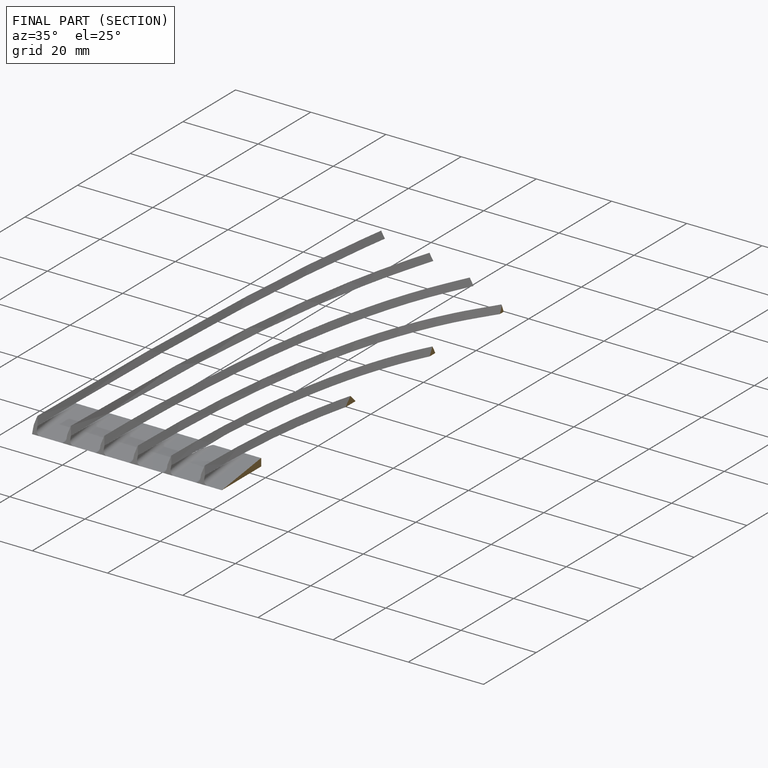
[diagram: finished part — half-section view (interior)]
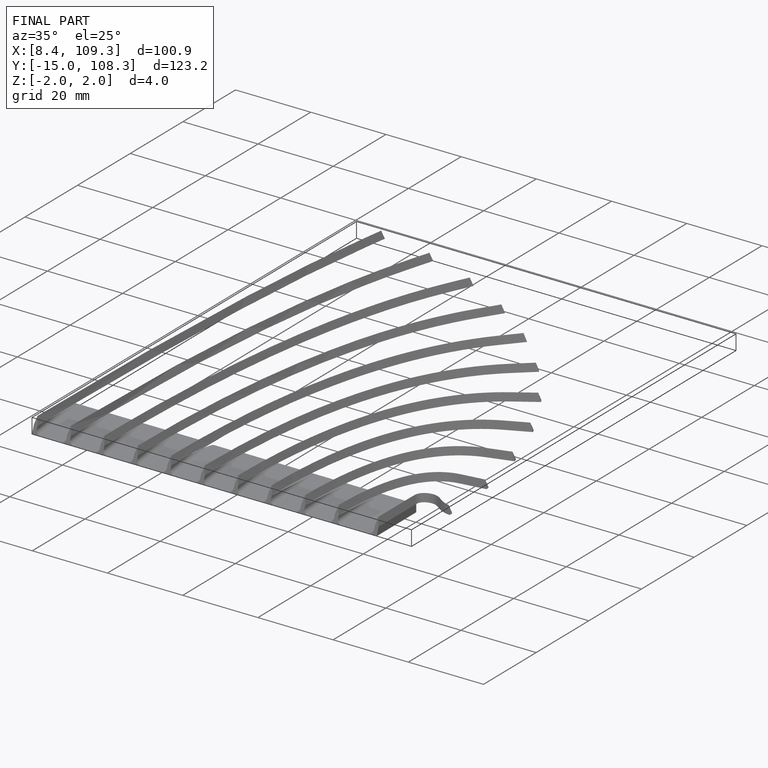
[diagram: finished part — iso view with bounding-box wireframe]
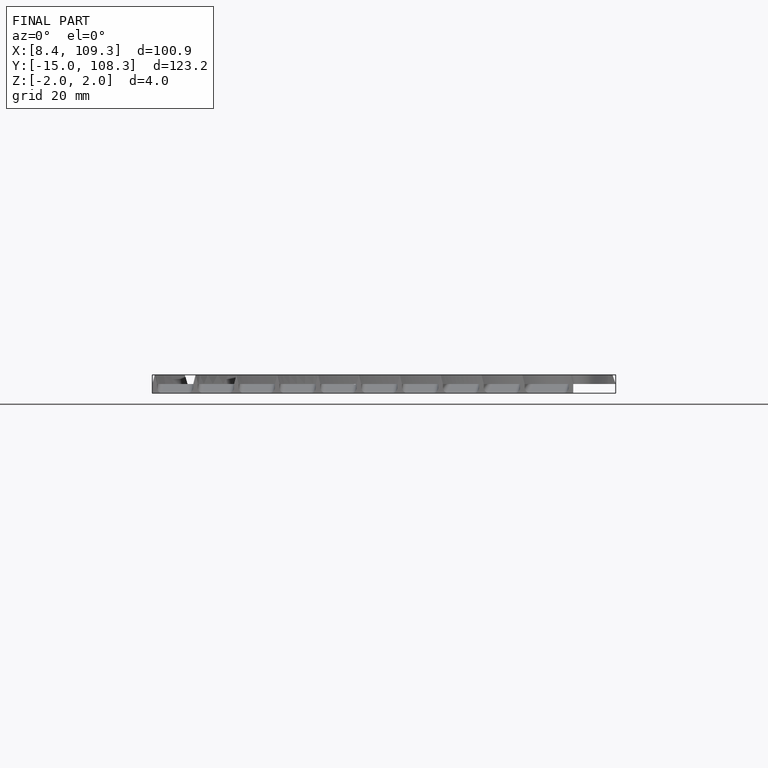
[diagram: finished part — front view with bounding-box wireframe]
